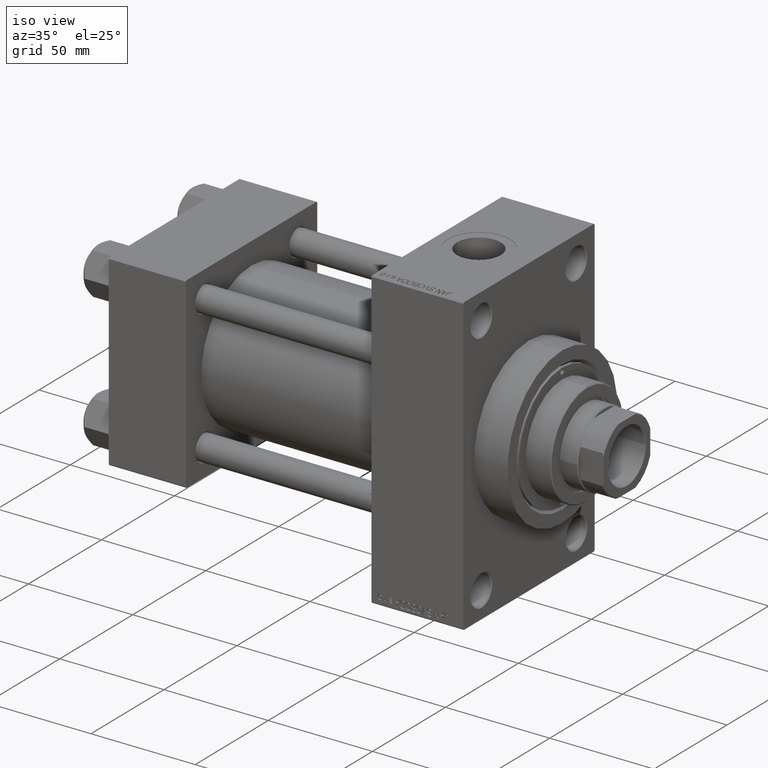
[diagram: clean part render]
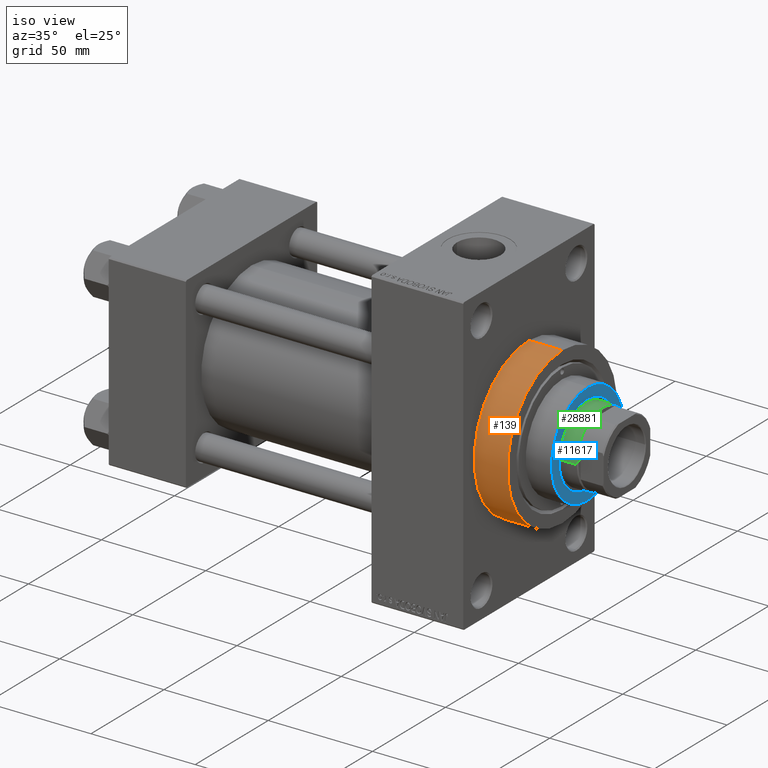
[diagram: same view with three faces highlighted in distinct colors, each labeled with its STEP entity id]
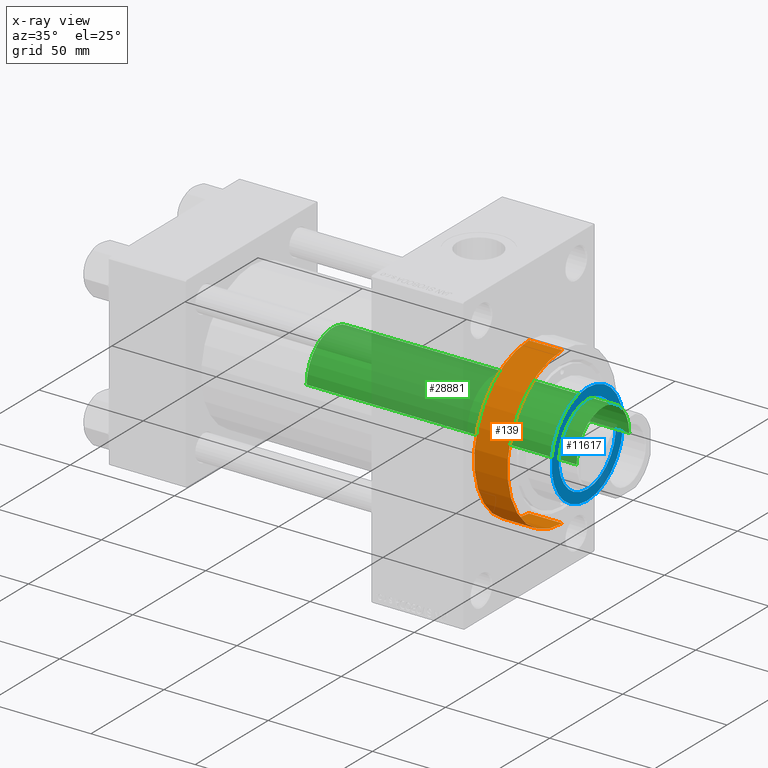
[diagram: x-ray of the same camera — body ghosted, the three highlighted faces saturated]
A machine part, iso view with three faces highlighted in distinct colors.
The next image is the same camera in x-ray (body ghosted, the three faces saturated) — at least one of them is partly hidden behind the body in this view.
Their STEP definitions:

[orange] entity #139 — the highlighted cylindrical surface (partial cylindrical patch) has radius 37.5 mm, axis along (-1, -0, -0).
#139 = ADVANCED_FACE ( 'NONE', ( #27064 ), #13371, .T. ) ;
#245 = DIRECTION ( 'NONE',  ( 1.000000000000000000, 0.000000000000000000, 0.000000000000000000 ) ) ;
#2512 = EDGE_CURVE ( 'NONE', #18356, #11095, #32548, .T. ) ;
#2944 = EDGE_CURVE ( 'NONE', #4431, #11095, #17196, .T. ) ;
#3053 = ORIENTED_EDGE ( 'NONE', *, *, #2944, .F. ) ;
#3313 = ORIENTED_EDGE ( 'NONE', *, *, #22764, .T. ) ;
#4431 = VERTEX_POINT ( 'NONE', #9839 ) ;
#7804 = LINE ( 'NONE', #26488, #29189 ) ;
#9839 = CARTESIAN_POINT ( 'NONE',  ( 186.0000000000000000, 4.592425496802575156E-15, -37.50000000000000711 ) ) ;
#11095 = VERTEX_POINT ( 'NONE', #14525 ) ;
#11587 = VERTEX_POINT ( 'NONE', #12208 ) ;
#12208 = CARTESIAN_POINT ( 'NONE',  ( 186.0000000000000000, 0.000000000000000000, 37.50000000000000711 ) ) ;
#12643 = AXIS2_PLACEMENT_3D ( 'NONE', #18458, #245, #25140 ) ;
#13371 = CYLINDRICAL_SURFACE ( 'NONE', #28729, 37.50000000000000711 ) ;
#13685 = EDGE_CURVE ( 'NONE', #11587, #4431, #32149, .T. ) ;
#14525 = CARTESIAN_POINT ( 'NONE',  ( 169.9999999999999716, 4.592425496802575156E-15, -37.50000000000000711 ) ) ;
#15018 = ORIENTED_EDGE ( 'NONE', *, *, #2512, .T. ) ;
#17196 = LINE ( 'NONE', #29813, #23354 ) ;
#18356 = VERTEX_POINT ( 'NONE', #34716 ) ;
#18458 = CARTESIAN_POINT ( 'NONE',  ( 169.9999999999999716, 0.000000000000000000, 0.000000000000000000 ) ) ;
#18552 = EDGE_LOOP ( 'NONE', ( #3053, #46567, #3313, #15018 ) ) ;
#20997 = CARTESIAN_POINT ( 'NONE',  ( 186.0000000000000000, 0.000000000000000000, 0.000000000000000000 ) ) ;
#22172 = DIRECTION ( 'NONE',  ( 1.000000000000000000, 0.000000000000000000, 0.000000000000000000 ) ) ;
#22764 = EDGE_CURVE ( 'NONE', #11587, #18356, #7804, .T. ) ;
#23354 = VECTOR ( 'NONE', #32687, 1000.000000000000000 ) ;
#25140 = DIRECTION ( 'NONE',  ( 0.000000000000000000, 0.000000000000000000, -1.000000000000000000 ) ) ;
#26488 = CARTESIAN_POINT ( 'NONE',  ( 186.0000000000000000, 0.000000000000000000, 37.50000000000000711 ) ) ;
#27064 = FACE_OUTER_BOUND ( 'NONE', #18552, .T. ) ;
#28729 = AXIS2_PLACEMENT_3D ( 'NONE', #38320, #38550, #42624 ) ;
#29189 = VECTOR ( 'NONE', #44704, 1000.000000000000000 ) ;
#29813 = CARTESIAN_POINT ( 'NONE',  ( 186.0000000000000000, 4.592425496802575156E-15, -37.50000000000000711 ) ) ;
#32149 = CIRCLE ( 'NONE', #39015, 37.50000000000000711 ) ;
#32548 = CIRCLE ( 'NONE', #12643, 37.50000000000000711 ) ;
#32687 = DIRECTION ( 'NONE',  ( -1.000000000000000000, -0.000000000000000000, -0.000000000000000000 ) ) ;
#34716 = CARTESIAN_POINT ( 'NONE',  ( 169.9999999999999716, 0.000000000000000000, 37.50000000000000711 ) ) ;
#36798 = DIRECTION ( 'NONE',  ( 0.000000000000000000, 0.000000000000000000, -1.000000000000000000 ) ) ;
#38320 = CARTESIAN_POINT ( 'NONE',  ( 186.0000000000000000, 0.000000000000000000, 0.000000000000000000 ) ) ;
#38550 = DIRECTION ( 'NONE',  ( -1.000000000000000000, -0.000000000000000000, -0.000000000000000000 ) ) ;
#39015 = AXIS2_PLACEMENT_3D ( 'NONE', #20997, #22172, #36798 ) ;
#42624 = DIRECTION ( 'NONE',  ( 0.000000000000000000, 0.000000000000000000, 1.000000000000000000 ) ) ;
#44704 = DIRECTION ( 'NONE',  ( -1.000000000000000000, -0.000000000000000000, -0.000000000000000000 ) ) ;
#46567 = ORIENTED_EDGE ( 'NONE', *, *, #13685, .F. ) ;

[blue] entity #11617 — the highlighted planar face has unit normal (1, -0, -0).
#1000 = ORIENTED_EDGE ( 'NONE', *, *, #3963, .F. ) ;
#1071 = DIRECTION ( 'NONE',  ( 1.000000000000000000, 0.000000000000000000, 0.000000000000000000 ) ) ;
#1425 = CARTESIAN_POINT ( 'NONE',  ( 0.000000000000000000, 0.000000000000000000, 55.26000000000000512 ) ) ;
#3963 = EDGE_CURVE ( 'NONE', #37567, #22605, #24923, .T. ) ;
#8304 = EDGE_CURVE ( 'NONE', #22605, #37567, #41910, .T. ) ;
#8780 = CARTESIAN_POINT ( 'NONE',  ( 0.000000000000000000, 0.000000000000000000, 55.26000000000000512 ) ) ;
#11617 = ADVANCED_FACE ( 'NONE', ( #38091, #34272 ), #16053, .T. ) ;
#12911 = DIRECTION ( 'NONE',  ( 0.000000000000000000, 0.000000000000000000, 1.000000000000000000 ) ) ;
#14437 = AXIS2_PLACEMENT_3D ( 'NONE', #1425, #12911, #46226 ) ;
#15794 = AXIS2_PLACEMENT_3D ( 'NONE', #19292, #33913, #1071 ) ;
#16053 = PLANE ( 'NONE',  #14437 ) ;
#19292 = CARTESIAN_POINT ( 'NONE',  ( 0.000000000000000000, 0.000000000000000000, 55.26000000000000512 ) ) ;
#19569 = VERTEX_POINT ( 'NONE', #24182 ) ;
#19965 = DIRECTION ( 'NONE',  ( 1.000000000000000000, 0.000000000000000000, 0.000000000000000000 ) ) ;
#20229 = CARTESIAN_POINT ( 'NONE',  ( -24.50000000000001066, 0.000000000000000000, 55.26000000000000512 ) ) ;
#21697 = EDGE_LOOP ( 'NONE', ( #31970, #23761 ) ) ;
#22605 = VERTEX_POINT ( 'NONE', #35156 ) ;
#22767 = AXIS2_PLACEMENT_3D ( 'NONE', #8780, #22919, #34433 ) ;
#22919 = DIRECTION ( 'NONE',  ( 0.000000000000000000, 0.000000000000000000, 1.000000000000000000 ) ) ;
#23761 = ORIENTED_EDGE ( 'NONE', *, *, #45561, .T. ) ;
#24084 = CARTESIAN_POINT ( 'NONE',  ( 0.000000000000000000, 0.000000000000000000, 55.26000000000000512 ) ) ;
#24182 = CARTESIAN_POINT ( 'NONE',  ( 24.50000000000001066, 3.031000827889700044E-15, 55.26000000000000512 ) ) ;
#24200 = CIRCLE ( 'NONE', #15794, 24.50000000000001066 ) ;
#24391 = ORIENTED_EDGE ( 'NONE', *, *, #8304, .F. ) ;
#24923 = CIRCLE ( 'NONE', #25697, 19.50000000000000000 ) ;
#25697 = AXIS2_PLACEMENT_3D ( 'NONE', #24084, #27927, #30830 ) ;
#27530 = AXIS2_PLACEMENT_3D ( 'NONE', #42022, #27638, #19965 ) ;
#27557 = VERTEX_POINT ( 'NONE', #20229 ) ;
#27638 = DIRECTION ( 'NONE',  ( 0.000000000000000000, 0.000000000000000000, 1.000000000000000000 ) ) ;
#27927 = DIRECTION ( 'NONE',  ( 0.000000000000000000, 0.000000000000000000, 1.000000000000000000 ) ) ;
#30830 = DIRECTION ( 'NONE',  ( 1.000000000000000000, 0.000000000000000000, 0.000000000000000000 ) ) ;
#31970 = ORIENTED_EDGE ( 'NONE', *, *, #34487, .T. ) ;
#33163 = EDGE_LOOP ( 'NONE', ( #24391, #1000 ) ) ;
#33913 = DIRECTION ( 'NONE',  ( 0.000000000000000000, 0.000000000000000000, 1.000000000000000000 ) ) ;
#34272 = FACE_OUTER_BOUND ( 'NONE', #21697, .T. ) ;
#34433 = DIRECTION ( 'NONE',  ( 1.000000000000000000, 0.000000000000000000, 0.000000000000000000 ) ) ;
#34487 = EDGE_CURVE ( 'NONE', #27557, #19569, #24200, .T. ) ;
#35002 = CARTESIAN_POINT ( 'NONE',  ( -19.50000000000000000, 2.388061258337338939E-15, 55.26000000000000512 ) ) ;
#35156 = CARTESIAN_POINT ( 'NONE',  ( 19.50000000000000000, 0.000000000000000000, 55.26000000000000512 ) ) ;
#37567 = VERTEX_POINT ( 'NONE', #35002 ) ;
#38091 = FACE_BOUND ( 'NONE', #33163, .T. ) ;
#41910 = CIRCLE ( 'NONE', #22767, 19.50000000000000000 ) ;
#42022 = CARTESIAN_POINT ( 'NONE',  ( 0.000000000000000000, 0.000000000000000000, 55.26000000000000512 ) ) ;
#42804 = CIRCLE ( 'NONE', #27530, 24.50000000000001066 ) ;
#45561 = EDGE_CURVE ( 'NONE', #19569, #27557, #42804, .T. ) ;
#46226 = DIRECTION ( 'NONE',  ( 1.000000000000000000, 0.000000000000000000, -0.000000000000000000 ) ) ;

[green] entity #28881 — the highlighted cylindrical surface (partial cylindrical patch) has radius 18 mm, axis along (-1, 0, 0).
#27 = EDGE_CURVE ( 'NONE', #30587, #4109, #8138, .T. ) ;
#582 = CARTESIAN_POINT ( 'NONE',  ( 0.000000000000000000, 0.000000000000000000, 39.00000000000000000 ) ) ;
#1186 = VECTOR ( 'NONE', #7665, 1000.000000000000000 ) ;
#1803 = ORIENTED_EDGE ( 'NONE', *, *, #31102, .T. ) ;
#3692 = CARTESIAN_POINT ( 'NONE',  ( 0.000000000000000000, 0.000000000000000000, 168.4999999999999716 ) ) ;
#4109 = VERTEX_POINT ( 'NONE', #28632 ) ;
#4191 = EDGE_CURVE ( 'NONE', #30587, #6642, #21086, .T. ) ;
#4546 = CARTESIAN_POINT ( 'NONE',  ( 18.00000000000000000, 2.204364238465235428E-15, 169.0000000000000000 ) ) ;
#6642 = VERTEX_POINT ( 'NONE', #25438 ) ;
#7537 = DIRECTION ( 'NONE',  ( 1.000000000000000000, 0.000000000000000000, 0.000000000000000000 ) ) ;
#7665 = DIRECTION ( 'NONE',  ( -0.000000000000000000, -0.000000000000000000, -1.000000000000000000 ) ) ;
#8051 = ORIENTED_EDGE ( 'NONE', *, *, #24744, .T. ) ;
#8138 = LINE ( 'NONE', #4546, #1186 ) ;
#8624 = DIRECTION ( 'NONE',  ( -0.000000000000000000, -0.000000000000000000, -1.000000000000000000 ) ) ;
#9330 = LINE ( 'NONE', #23704, #11664 ) ;
#10369 = AXIS2_PLACEMENT_3D ( 'NONE', #3692, #18312, #7537 ) ;
#10571 = CYLINDRICAL_SURFACE ( 'NONE', #26334, 18.00000000000000000 ) ;
#11522 = DIRECTION ( 'NONE',  ( -0.000000000000000000, -0.000000000000000000, -1.000000000000000000 ) ) ;
#11598 = DIRECTION ( 'NONE',  ( 1.000000000000000000, 0.000000000000000000, 0.000000000000000000 ) ) ;
#11664 = VECTOR ( 'NONE', #8624, 1000.000000000000000 ) ;
#12237 = ORIENTED_EDGE ( 'NONE', *, *, #4191, .T. ) ;
#15197 = DIRECTION ( 'NONE',  ( 0.000000000000000000, 0.000000000000000000, 1.000000000000000000 ) ) ;
#17040 = CARTESIAN_POINT ( 'NONE',  ( 18.00000000000000000, 2.204364238465235428E-15, 168.4999999999999716 ) ) ;
#18312 = DIRECTION ( 'NONE',  ( 0.000000000000000000, 0.000000000000000000, -1.000000000000000000 ) ) ;
#21086 = CIRCLE ( 'NONE', #10369, 18.00000000000000000 ) ;
#23704 = CARTESIAN_POINT ( 'NONE',  ( -18.00000000000000000, 0.000000000000000000, 169.0000000000000000 ) ) ;
#24744 = EDGE_CURVE ( 'NONE', #6642, #36619, #9330, .T. ) ;
#24875 = CIRCLE ( 'NONE', #34065, 18.00000000000000000 ) ;
#25199 = DIRECTION ( 'NONE',  ( -1.000000000000000000, 0.000000000000000000, 0.000000000000000000 ) ) ;
#25438 = CARTESIAN_POINT ( 'NONE',  ( -18.00000000000000000, 0.000000000000000000, 168.4999999999999716 ) ) ;
#26334 = AXIS2_PLACEMENT_3D ( 'NONE', #40285, #11522, #25199 ) ;
#27581 = EDGE_LOOP ( 'NONE', ( #43990, #12237, #8051, #1803 ) ) ;
#28632 = CARTESIAN_POINT ( 'NONE',  ( 18.00000000000000000, 2.204364238465235428E-15, 39.00000000000000000 ) ) ;
#28881 = ADVANCED_FACE ( 'NONE', ( #43660 ), #10571, .T. ) ;
#30587 = VERTEX_POINT ( 'NONE', #17040 ) ;
#31102 = EDGE_CURVE ( 'NONE', #36619, #4109, #24875, .T. ) ;
#33568 = CARTESIAN_POINT ( 'NONE',  ( -18.00000000000000000, 0.000000000000000000, 39.00000000000000000 ) ) ;
#34065 = AXIS2_PLACEMENT_3D ( 'NONE', #582, #15197, #11598 ) ;
#36619 = VERTEX_POINT ( 'NONE', #33568 ) ;
#40285 = CARTESIAN_POINT ( 'NONE',  ( 0.000000000000000000, 0.000000000000000000, 169.0000000000000000 ) ) ;
#43660 = FACE_OUTER_BOUND ( 'NONE', #27581, .T. ) ;
#43990 = ORIENTED_EDGE ( 'NONE', *, *, #27, .F. ) ;